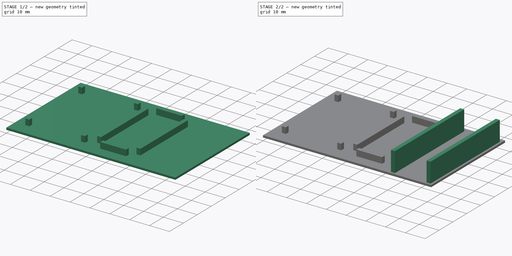
[diagram: build sequence overview — one tinted view per stage of 2, left to right]
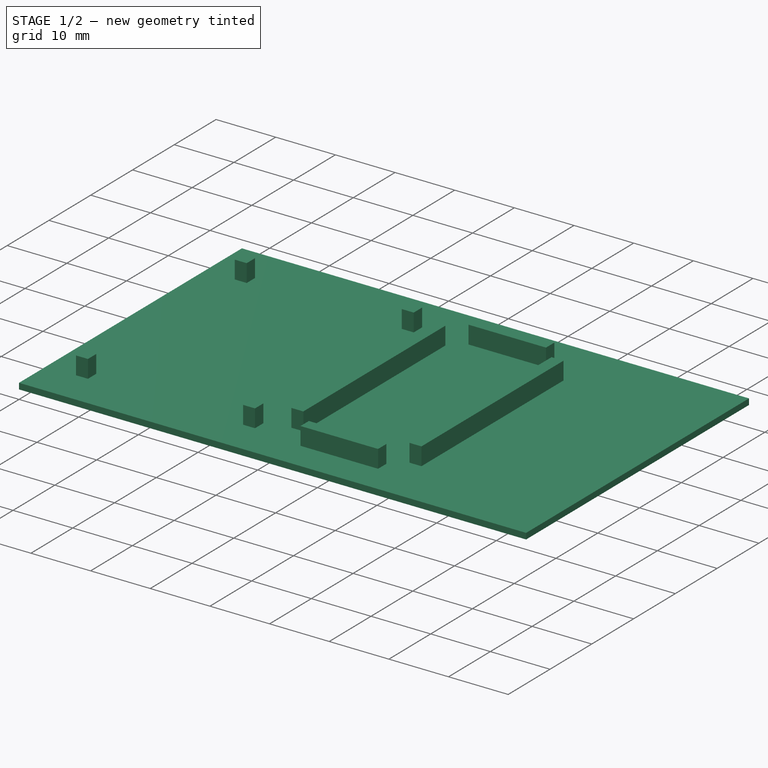
[diagram: stage 1 of 2 — iso view after this stage's code; geometry added in this stage tinted green]
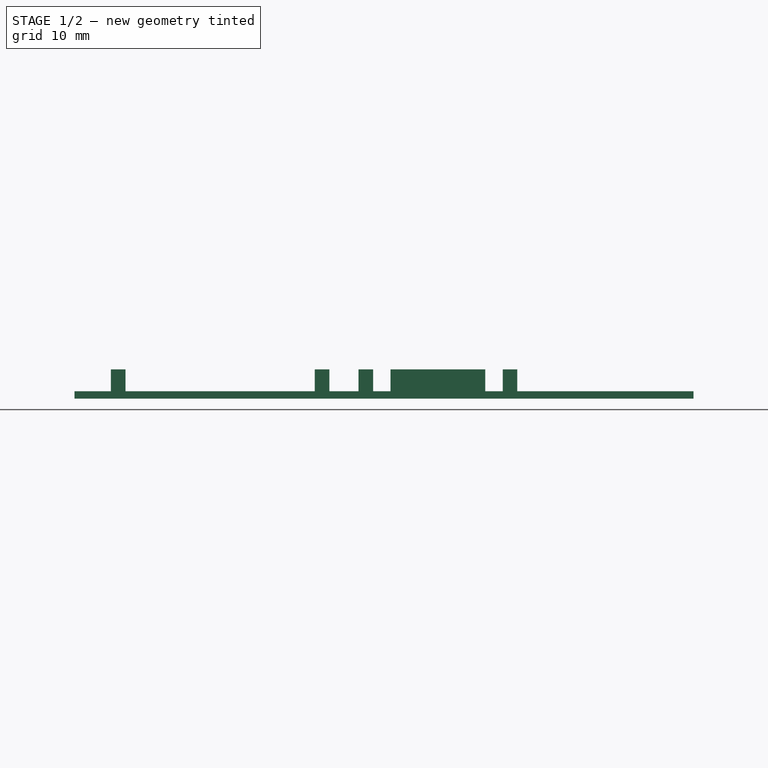
[diagram: stage 1 of 2 — front view after this stage's code; geometry added in this stage tinted green]
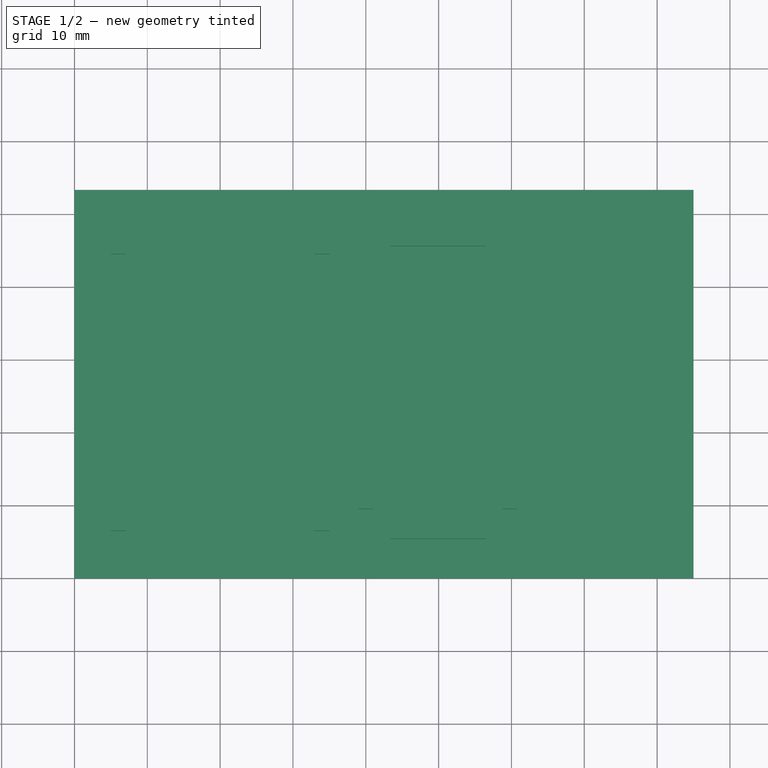
[diagram: stage 1 of 2 — top view after this stage's code; geometry added in this stage tinted green]
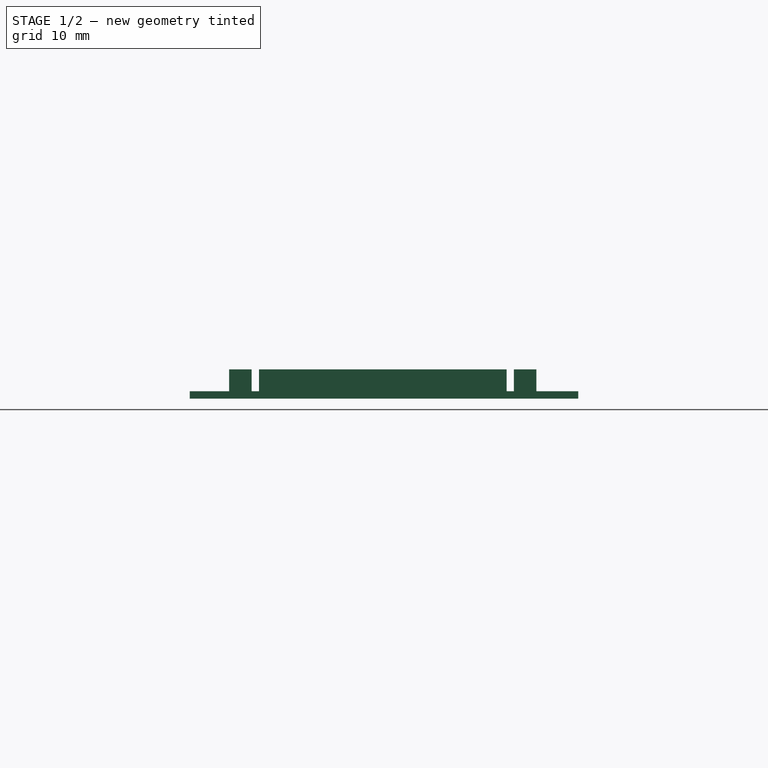
[diagram: stage 1 of 2 — right view after this stage's code; geometry added in this stage tinted green]
FCSTD DOCUMENT
Label: RFIDCase
objects: Sketcher::SketchObject×3, PartDesign::Pad×3
note: 9 computed .brp shape members not serialized (recipe doc carries the construction recipe); baked Part::Feature solids carry a one-line shape summary decoded from their .brp

FEATURE [Sketcher::SketchObject] Sketch
  sketch-geometry (4):
    g0: LineSegment StartX=0 StartY=0 StartZ=0 EndX=85 EndY=0 EndZ=0
    g1: LineSegment StartX=85 StartY=0 StartZ=0 EndX=85 EndY=53.34 EndZ=0
    g2: LineSegment StartX=85 StartY=53.34 StartZ=0 EndX=0 EndY=53.34 EndZ=0
    g3: LineSegment StartX=0 StartY=53.34 StartZ=0 EndX=0 EndY=0 EndZ=0
  constraints (12):
    c: Coincident(g0,g1)
    c: Coincident(g1,g2)
    c: Coincident(g2,g3)
    c: Coincident(g3,g0)
    c: Horizontal(g0)
    c: Horizontal(g2)
    c: Vertical(g1)
    c: Vertical(g3)
    c: DistanceY(g1) = 53.34
    c: DistanceX(g2) = -85
    c: DistanceX(g0) = 0
    c: DistanceY(g0) = 0
FEATURE [PartDesign::Pad] Pad
  Length = 1
  MirroredExtent = false
  Sketch = -> Sketch
FEATURE [PartDesign::Pad] Pad002
  Length = 3
  MirroredExtent = false
  Sketch = -> Sketch001
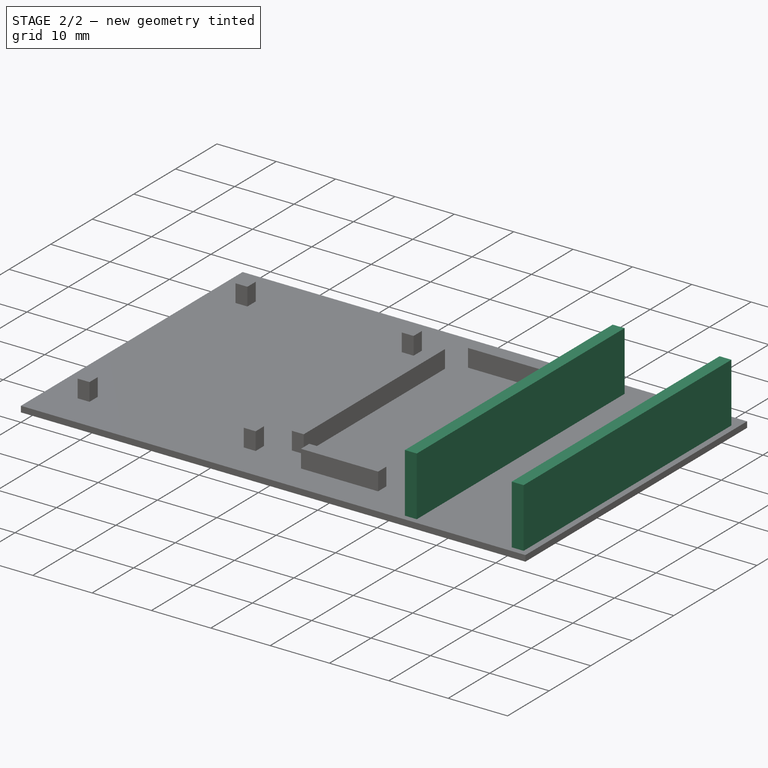
[diagram: stage 2 of 2 — iso view after this stage's code; geometry added in this stage tinted green]
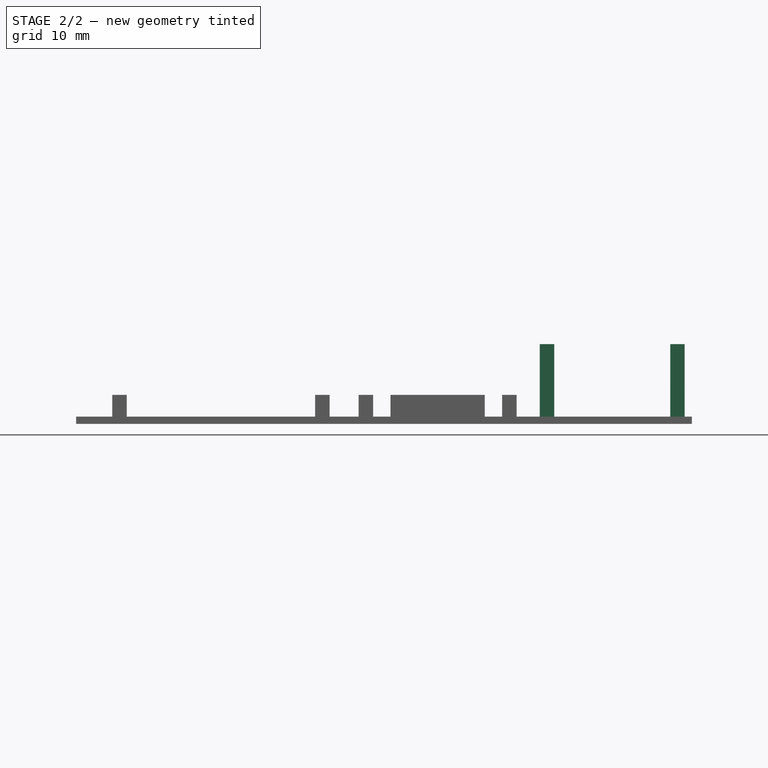
[diagram: stage 2 of 2 — front view after this stage's code; geometry added in this stage tinted green]
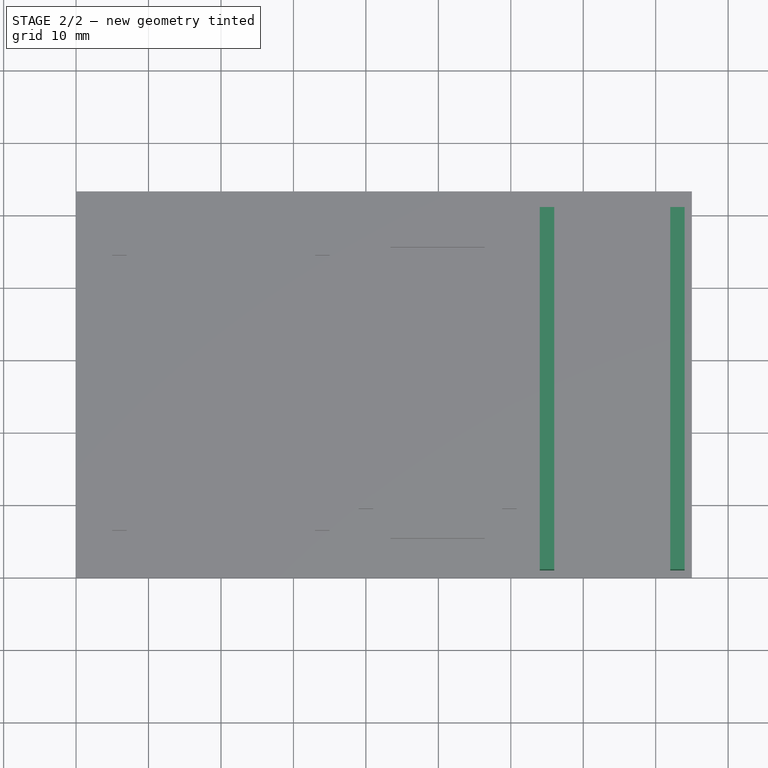
[diagram: stage 2 of 2 — top view after this stage's code; geometry added in this stage tinted green]
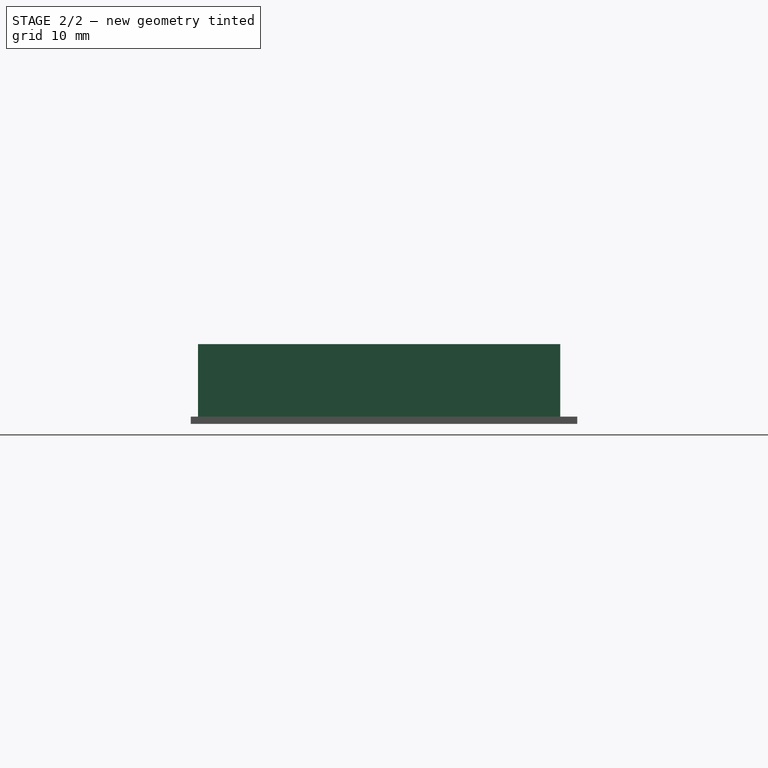
[diagram: stage 2 of 2 — right view after this stage's code; geometry added in this stage tinted green]
FEATURE [Sketcher::SketchObject] Sketch001  label="AntennaSketch"
  Placement = pos=(0,0,1) rot=(0,0,1;0rad)
  Support = -> Pad [Face6]
  sketch-geometry (47):
    g0: LineSegment StartX=5 StartY=46.5 StartZ=0 EndX=7 EndY=46.5 EndZ=0
    g1: LineSegment StartX=7 StartY=46.5 StartZ=0 EndX=7 EndY=44.5 EndZ=0
    g2: LineSegment StartX=7 StartY=44.5 StartZ=0 EndX=5 EndY=44.5 EndZ=0
    g3: LineSegment StartX=5 StartY=44.5 StartZ=0 EndX=5 EndY=46.5 EndZ=0
    g4: LineSegment StartX=5 StartY=6.5 StartZ=0 EndX=7 EndY=6.5 EndZ=0
    g5: LineSegment StartX=7 StartY=6.5 StartZ=0 EndX=7 EndY=8.5 EndZ=0
    g6: LineSegment StartX=7 StartY=8.5 StartZ=0 EndX=5 EndY=8.5 EndZ=0
    g7: LineSegment StartX=5 StartY=8.5 StartZ=0 EndX=5 EndY=6.5 EndZ=0
    g8: LineSegment StartX=33 StartY=46.5 StartZ=0 EndX=35 EndY=46.5 EndZ=0
    g9: LineSegment StartX=35 StartY=46.5 StartZ=0 EndX=35 EndY=44.5 EndZ=0
    g10: LineSegment StartX=35 StartY=44.5 StartZ=0 EndX=33 EndY=44.5 EndZ=0
    g11: LineSegment StartX=33 StartY=44.5 StartZ=0 EndX=33 EndY=46.5 EndZ=0
    g12: LineSegment StartX=33 StartY=6.5 StartZ=0 EndX=35 EndY=6.5 EndZ=0
    g13: LineSegment StartX=35 StartY=6.5 StartZ=0 EndX=35 EndY=8.5 EndZ=0
    g14: LineSegment StartX=35 StartY=8.5 StartZ=0 EndX=33 EndY=8.5 EndZ=0
    g15: LineSegment StartX=33 StartY=8.5 StartZ=0 EndX=33 EndY=6.5 EndZ=0
    g16: LineSegment [constr] StartX=7 StartY=46.5 StartZ=0 EndX=33 EndY=46.5 EndZ=0
    g17: LineSegment [constr] StartX=7 StartY=6.5 StartZ=0 EndX=33 EndY=6.5 EndZ=0
    g18: LineSegment [constr] StartX=5 StartY=44.5 StartZ=0 EndX=5 EndY=8.5 EndZ=0
    g19: LineSegment StartX=43.4 StartY=7.4 StartZ=0 EndX=56.4 EndY=7.4 EndZ=0
    g20: LineSegment StartX=56.4 StartY=7.4 StartZ=0 EndX=56.4 EndY=5.4 EndZ=0
    g21: LineSegment StartX=56.4 StartY=5.4 StartZ=0 EndX=43.4 EndY=5.4 EndZ=0
    g22: LineSegment StartX=43.4 StartY=5.4 StartZ=0 EndX=43.4 EndY=7.4 EndZ=0
    g23: LineSegment StartX=43.4 StartY=47.6 StartZ=0 EndX=56.4 EndY=47.6 EndZ=0
    g24: LineSegment StartX=56.4 StartY=47.6 StartZ=0 EndX=56.4 EndY=45.6 EndZ=0
    g25: LineSegment StartX=56.4 StartY=45.6 StartZ=0 EndX=43.4 EndY=45.6 EndZ=0
    g26: LineSegment StartX=43.4 StartY=45.6 StartZ=0 EndX=43.4 EndY=47.6 EndZ=0
    g27: LineSegment StartX=41 StartY=43.5 StartZ=0 EndX=39 EndY=43.5 EndZ=0
    g28: LineSegment StartX=39 StartY=43.5 StartZ=0 EndX=39 EndY=9.5 EndZ=0
    g29: LineSegment StartX=39 StartY=9.5 StartZ=0 EndX=41 EndY=9.5 EndZ=0
    g30: LineSegment StartX=58.8 StartY=43.5 StartZ=0 EndX=60.8 EndY=43.5 EndZ=0
    g31: LineSegment StartX=60.8 StartY=43.5 StartZ=0 EndX=60.8 EndY=9.5 EndZ=0
    g32: LineSegment StartX=60.8 StartY=9.5 StartZ=0 EndX=58.8 EndY=9.5 EndZ=0
    g33: LineSegment StartX=58.8 StartY=9.5 StartZ=0 EndX=58.8 EndY=43.5 EndZ=0
    g34: LineSegment [constr] StartX=39 StartY=43.5 StartZ=0 EndX=39 EndY=47.6 EndZ=0
    g35: LineSegment [constr] StartX=39 StartY=47.6 StartZ=0 EndX=43.4 EndY=47.6 EndZ=0
    g36: LineSegment [constr] StartX=56.4 StartY=47.6 StartZ=0 EndX=60.8 EndY=47.6 EndZ=0
    g37: LineSegment [constr] StartX=60.8 StartY=47.6 StartZ=0 EndX=60.8 EndY=43.5 EndZ=0
    g38: LineSegment [constr] StartX=60.8 StartY=9.5 StartZ=0 EndX=60.8 EndY=5.4 EndZ=0
    g39: LineSegment [constr] StartX=60.8 StartY=5.4 StartZ=0 EndX=56.4 EndY=5.4 EndZ=0
    g40: LineSegment [constr] StartX=39 StartY=9.5 StartZ=0 EndX=39 EndY=5.4 EndZ=0
    g41: LineSegment [constr] StartX=39 StartY=5.4 StartZ=0 EndX=43.4 EndY=5.4 EndZ=0
    g42: LineSegment StartX=41 StartY=43.5 StartZ=0 EndX=41 EndY=26.5 EndZ=0
    g43: LineSegment StartX=41 StartY=26.5 StartZ=0 EndX=41 EndY=9.5 EndZ=0
    g44: LineSegment [constr] StartX=35 StartY=44.5 StartZ=0 EndX=35 EndY=26.5 EndZ=0
    g45: LineSegment [constr] StartX=35 StartY=26.5 StartZ=0 EndX=35 EndY=8.5 EndZ=0
    g46: LineSegment [constr] StartX=35 StartY=26.5 StartZ=0 EndX=41 EndY=26.5 EndZ=0
  constraints (132):
    c: Coincident(g0,g1)
    c: Coincident(g1,g2)
    c: Coincident(g2,g3)
    c: Coincident(g3,g0)
    c: Horizontal(g0)
    c: Horizontal(g2)
    c: Vertical(g1)
    c: Vertical(g3)
    c: Coincident(g4,g5)
    c: Coincident(g5,g6)
    c: Coincident(g6,g7)
    c: Coincident(g7,g4)
    c: Horizontal(g4)
    c: Horizontal(g6)
    c: Vertical(g5)
    c: Vertical(g7)
    c: Coincident(g8,g9)
    c: Coincident(g9,g10)
    c: Coincident(g10,g11)
    c: Coincident(g11,g8)
    c: Horizontal(g8)
    c: Horizontal(g10)
    c: Vertical(g9)
    c: Vertical(g11)
    c: Coincident(g12,g13)
    c: Coincident(g13,g14)
    c: Coincident(g14,g15)
    c: Coincident(g15,g12)
    c: Horizontal(g12)
    c: Horizontal(g14)
    c: Vertical(g13)
    c: Vertical(g15)
    c: DistanceX(g0) = 2
    c: DistanceY(g3) = 2
    c: Equal(g3,g7)
    c: Equal(g7,g13)
    c: Equal(g13,g9)
    c: Equal(g0,g8)
    c: Equal(g8,g12)
    c: Equal(g12,g4)
    c: Horizontal(g16)
    c: Horizontal(g17)
    c: Vertical(g18)
    c: Coincident(g2,g18)
    c: Coincident(g6,g18)
    c: Coincident(g17,g12)
    c: Coincident(g17,g4)
    c: Coincident(g0,g16)
    c: Coincident(g8,g16)
    c: DistanceY(g8,g12) = -40
    c: DistanceX(g0,g8) = 30
    c: DistanceX(g4) = 5
    c: DistanceY(g4) = 6.5
    c: Coincident(g19,g20)
    c: Coincident(g20,g21)
    c: Coincident(g21,g22)
    c: Coincident(g22,g19)
    c: Horizontal(g19)
    c: Horizontal(g21)
    c: Vertical(g20)
    c: Vertical(g22)
    c: Coincident(g23,g24)
    c: Coincident(g24,g25)
    c: Coincident(g25,g26)
    c: Coincident(g26,g23)
    c: Horizontal(g23)
    c: Horizontal(g25)
    c: Vertical(g24)
    c: Vertical(g26)
    c: Coincident(g27,g28)
    c: Coincident(g28,g29)
    c: Horizontal(g27)
    c: Horizontal(g29)
    c: Vertical(g28)
    c: Coincident(g30,g31)
    c: Coincident(g31,g32)
    c: Coincident(g32,g33)
    c: Coincident(g33,g30)
    c: Horizontal(g30)
    c: Horizontal(g32)
    c: Vertical(g31)
    c: Vertical(g33)
    c: DistanceX(g29) = 2
    c: Equal(g32,g29)
    c: DistanceY(g22) = 2
    c: Equal(g22,g26)
    c: Vertical(g34)
    c: Coincident(g34,g35)
    c: Horizontal(g35)
    c: Horizontal(g36)
    c: Coincident(g36,g37)
    c: Vertical(g37)
    c: Vertical(g38)
    c: Coincident(g38,g39)
    c: Horizontal(g39)
    c: Vertical(g40)
    c: Coincident(g40,g41)
    c: Horizontal(g41)
    c: Coincident(g34,g27)
    c: Coincident(g35,g23)
    c: Coincident(g23,g36)
    c: Coincident(g37,g30)
    c: Coincident(g38,g31)
    c: Coincident(g39,g20)
    c: Coincident(g21,g41)
    c: Coincident(g40,g28)
    c: Equal(g28,g31)
    c: Equal(g41,g39)
    c: Equal(g41,g35)
    c: Equal(g40,g38)
    c: Equal(g38,g34)
    c: DistanceY(g24,g19) = -38.2
    c: DistanceX(g29,g32) = 17.8
    c: DistanceY(g31) = -34
    c: DistanceX(g19) = 13
    c: Equal(g25,g19)
    c: Vertical(g42)
    c: Coincident(g42,g43)
    c: Vertical(g43)
    c: Coincident(g29,g43)
    c: Coincident(g42,g27)
    c: Equal(g43,g42)
    c: Vertical(g44)
    c: Coincident(g44,g45)
    c: Vertical(g45)
    c: Coincident(g9,g44)
    c: Coincident(g13,g45)
    c: Equal(g45,g44)
    c: Horizontal(g46)
    c: Coincident(g46,g42)
    c: Coincident(g46,g44)
    c: DistanceX(g46) = 6
FEATURE [Sketcher::SketchObject] Sketch002  label="BatterySketch"
  Placement = pos=(0,0,1) rot=(0,0,1;0rad)
  Support = -> Pad [Face6]
  sketch-geometry (9):
    g0: LineSegment StartX=64 StartY=51 StartZ=0 EndX=66 EndY=51 EndZ=0
    g1: LineSegment StartX=66 StartY=51 StartZ=0 EndX=66 EndY=1 EndZ=0
    g2: LineSegment StartX=66 StartY=1 StartZ=0 EndX=64 EndY=1 EndZ=0
    g3: LineSegment StartX=64 StartY=1 StartZ=0 EndX=64 EndY=51 EndZ=0
    g4: LineSegment StartX=84 StartY=51 StartZ=0 EndX=82 EndY=51 EndZ=0
    g5: LineSegment StartX=82 StartY=51 StartZ=0 EndX=82 EndY=1 EndZ=0
    g6: LineSegment StartX=82 StartY=1 StartZ=0 EndX=84 EndY=1 EndZ=0
    g7: LineSegment StartX=84 StartY=1 StartZ=0 EndX=84 EndY=51 EndZ=0
    g8: LineSegment [constr] StartX=66 StartY=51 StartZ=0 EndX=84 EndY=51 EndZ=0
  constraints (26):
    c: Coincident(g0,g1)
    c: Coincident(g1,g2)
    c: Coincident(g2,g3)
    c: Coincident(g3,g0)
    c: Horizontal(g0)
    c: Horizontal(g2)
    c: Vertical(g1)
    c: Vertical(g3)
    c: DistanceX(g0) = 2
    c: DistanceY(g1) = -50
    c: Coincident(g4,g5)
    c: Coincident(g5,g6)
    c: Coincident(g6,g7)
    c: Coincident(g7,g4)
    c: Horizontal(g4)
    c: Horizontal(g6)
    c: Vertical(g5)
    c: Vertical(g7)
    c: Equal(g7,g1)
    c: Equal(g4,g0)
    c: Horizontal(g8)
    c: Coincident(g8,g4)
    c: Coincident(g8,g0)
    c: DistanceX(g2) = 64
    c: DistanceY(g2) = 1
    c: DistanceX(g0,g4) = 18
FEATURE [PartDesign::Pad] Pad001
  Length = 10
  MirroredExtent = false
  Sketch = -> Sketch002
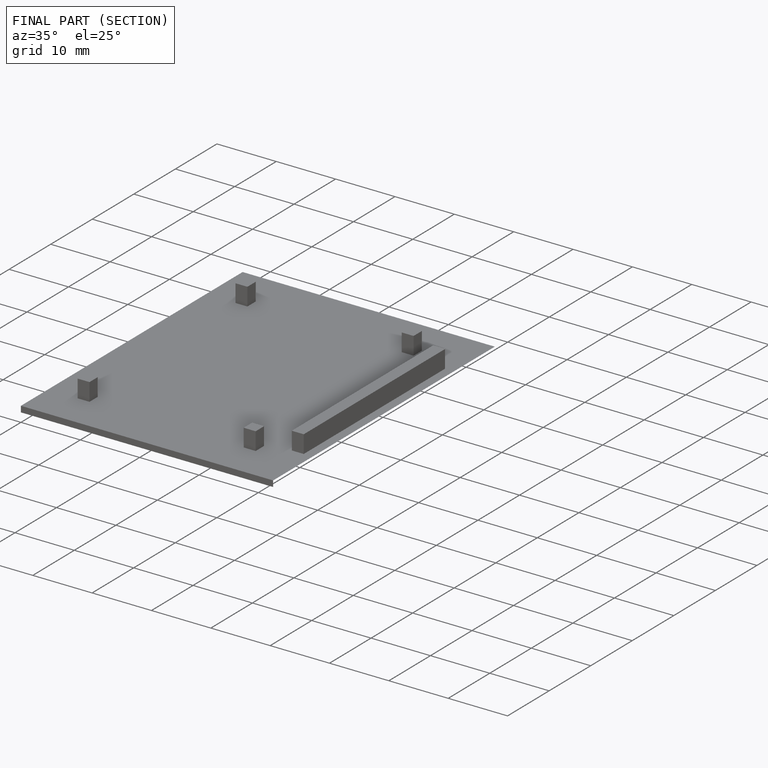
[diagram: finished part — half-section view (interior)]
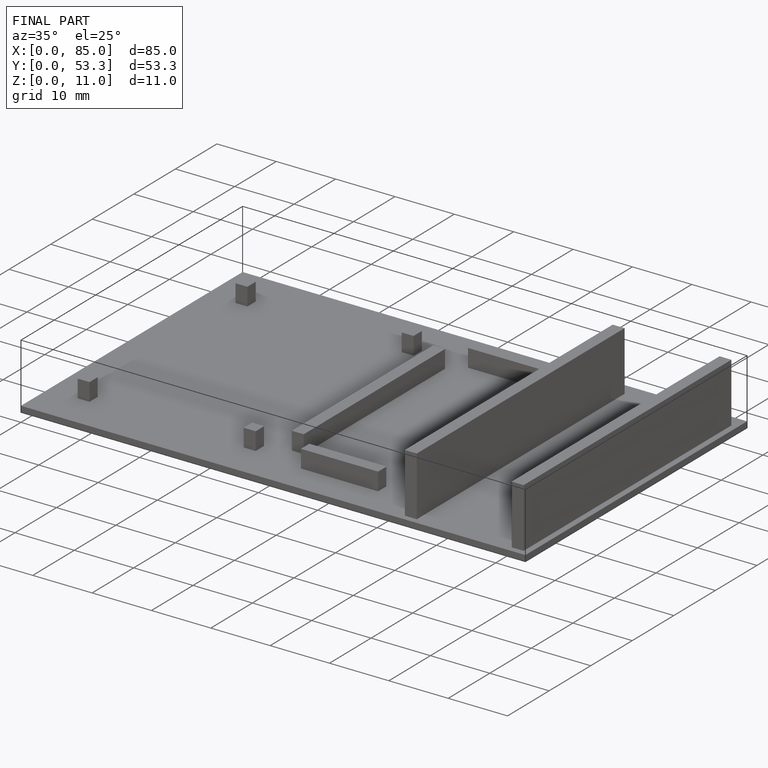
[diagram: finished part — iso view with bounding-box wireframe]
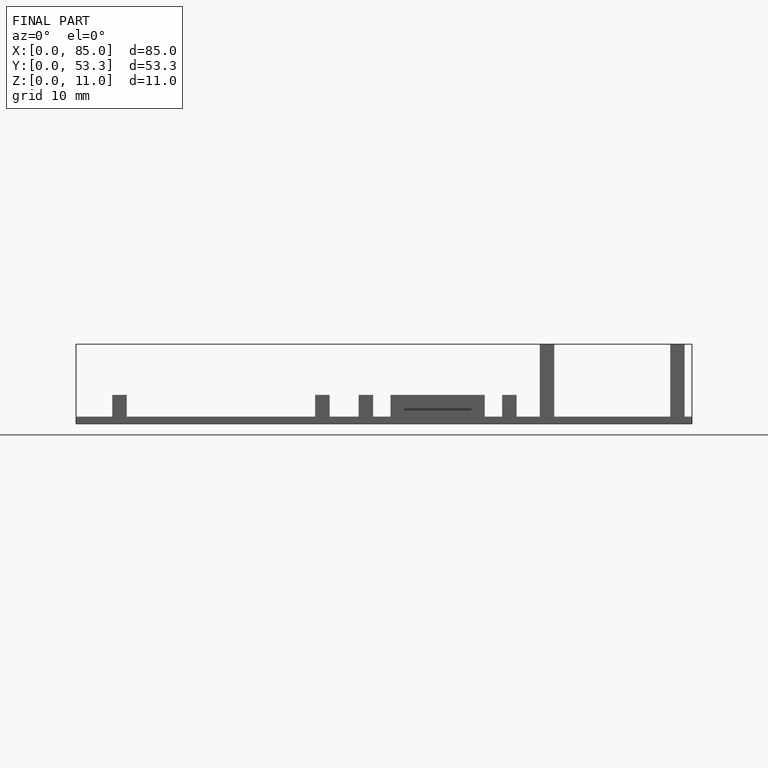
[diagram: finished part — front view with bounding-box wireframe]
